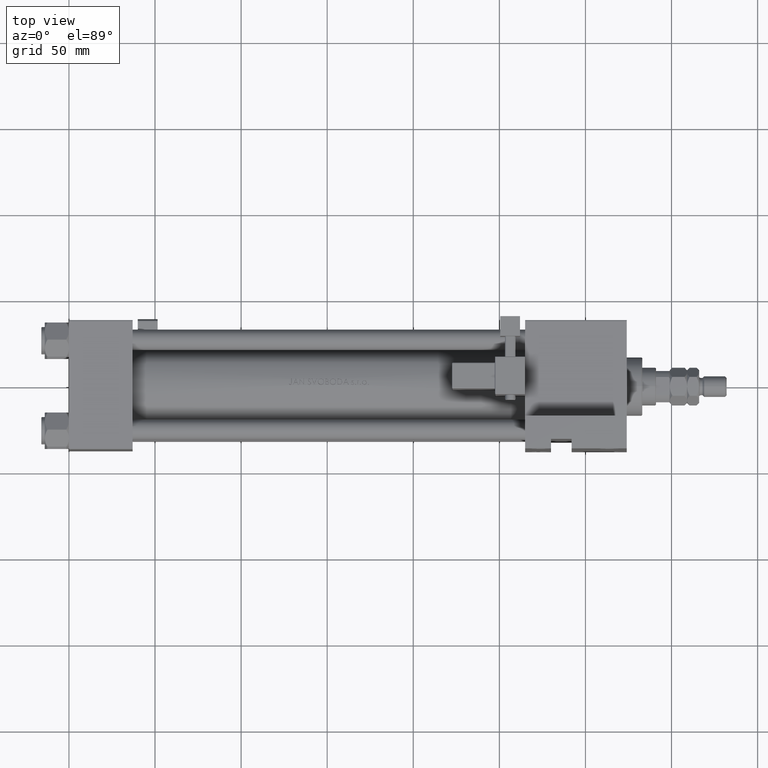
[diagram: clean part render]
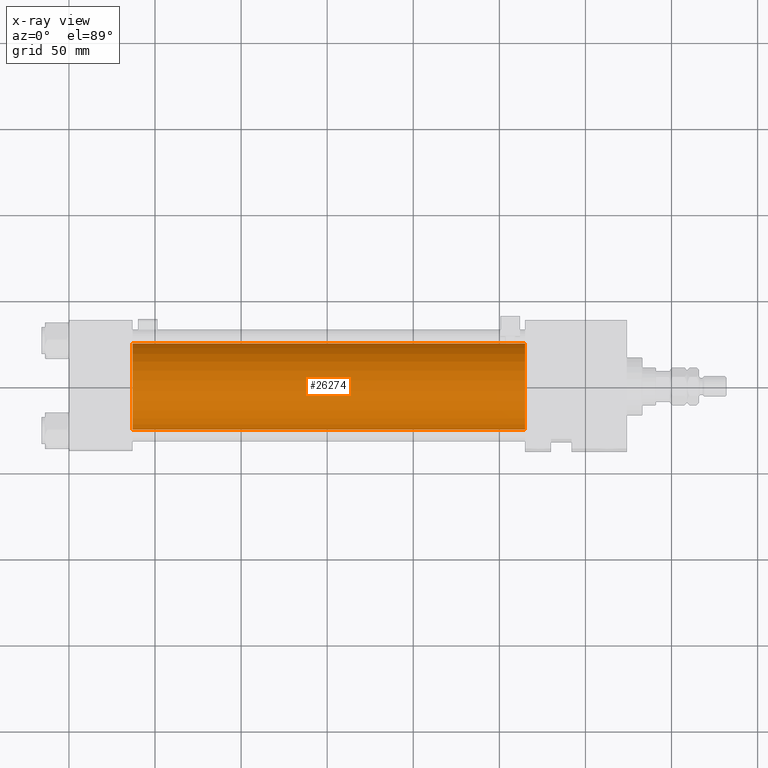
[diagram: x-ray — body ghosted, one internal face saturated and labeled with its STEP entity id]
A machine part, top view, then the same camera in x-ray: the body is ghosted and one INTERNAL B-rep face — a face not visible from any outside direction — is saturated and labeled: STEP entity #26274.
In plain terms, the highlighted cylindrical surface (partial cylindrical patch) has radius 25 mm, axis along (-1, -0, 0).
Its self-contained STEP definition (entity closure, byte-faithful):
#283 = LINE ( 'NONE', #13004, #49277 ) ;
#2140 = FACE_OUTER_BOUND ( 'NONE', #17516, .T. ) ;
#2385 = CARTESIAN_POINT ( 'NONE',  ( 265.0000000000000000, 6.123233995736772199E-17, 24.50000000000000000 ) ) ;
#3741 = EDGE_CURVE ( 'NONE', #51265, #22172, #283, .T. ) ;
#3802 = EDGE_CURVE ( 'NONE', #22172, #24192, #25214, .T. ) ;
#4516 = VECTOR ( 'NONE', #46269, 1000.000000000000000 ) ;
#7590 = AXIS2_PLACEMENT_3D ( 'NONE', #50175, #26029, #46537 ) ;
#9193 = CARTESIAN_POINT ( 'NONE',  ( 37.00000000000000000, 3.122849337825749828E-15, -25.50000000000000355 ) ) ;
#9853 = AXIS2_PLACEMENT_3D ( 'NONE', #21901, #49182, #36966 ) ;
#13004 = CARTESIAN_POINT ( 'NONE',  ( 265.0000000000000000, 6.123233995736772199E-17, 24.50000000000000000 ) ) ;
#15203 = ORIENTED_EDGE ( 'NONE', *, *, #3741, .F. ) ;
#16129 = CARTESIAN_POINT ( 'NONE',  ( 37.00000000000000000, 6.123233995736772199E-17, -0.5000000000000004441 ) ) ;
#17516 = EDGE_LOOP ( 'NONE', ( #19398, #24771, #49523, #15203 ) ) ;
#17988 = CYLINDRICAL_SURFACE ( 'NONE', #7590, 25.00000000000000000 ) ;
#19398 = ORIENTED_EDGE ( 'NONE', *, *, #45313, .T. ) ;
#20799 = DIRECTION ( 'NONE',  ( 1.000000000000000000, 0.000000000000000000, 0.000000000000000000 ) ) ;
#21901 = CARTESIAN_POINT ( 'NONE',  ( 265.0000000000000000, 6.123233995736772199E-17, -0.5000000000000004441 ) ) ;
#22172 = VERTEX_POINT ( 'NONE', #48922 ) ;
#24192 = VERTEX_POINT ( 'NONE', #9193 ) ;
#24771 = ORIENTED_EDGE ( 'NONE', *, *, #33424, .T. ) ;
#25214 = CIRCLE ( 'NONE', #28523, 25.00000000000000000 ) ;
#26029 = DIRECTION ( 'NONE',  ( -1.000000000000000000, -0.000000000000000000, -0.000000000000000000 ) ) ;
#26274 = ADVANCED_FACE ( 'NONE', ( #2140 ), #17988, .F. ) ;
#28094 = DIRECTION ( 'NONE',  ( -1.000000000000000000, -0.000000000000000000, -0.000000000000000000 ) ) ;
#28523 = AXIS2_PLACEMENT_3D ( 'NONE', #16129, #20799, #31972 ) ;
#29455 = VERTEX_POINT ( 'NONE', #47530 ) ;
#31972 = DIRECTION ( 'NONE',  ( 0.000000000000000000, 0.000000000000000000, -1.000000000000000000 ) ) ;
#33424 = EDGE_CURVE ( 'NONE', #29455, #24192, #50423, .T. ) ;
#34057 = CARTESIAN_POINT ( 'NONE',  ( 265.0000000000000000, 3.122849337825749828E-15, -25.50000000000000355 ) ) ;
#36966 = DIRECTION ( 'NONE',  ( 0.000000000000000000, 0.000000000000000000, -1.000000000000000000 ) ) ;
#45313 = EDGE_CURVE ( 'NONE', #51265, #29455, #50489, .T. ) ;
#46269 = DIRECTION ( 'NONE',  ( -1.000000000000000000, -0.000000000000000000, -0.000000000000000000 ) ) ;
#46537 = DIRECTION ( 'NONE',  ( 0.000000000000000000, 0.000000000000000000, 1.000000000000000000 ) ) ;
#47530 = CARTESIAN_POINT ( 'NONE',  ( 265.0000000000000000, 3.122849337825749828E-15, -25.50000000000000355 ) ) ;
#48922 = CARTESIAN_POINT ( 'NONE',  ( 37.00000000000000000, 6.123233995736772199E-17, 24.50000000000000000 ) ) ;
#49182 = DIRECTION ( 'NONE',  ( 1.000000000000000000, 0.000000000000000000, 0.000000000000000000 ) ) ;
#49277 = VECTOR ( 'NONE', #28094, 1000.000000000000000 ) ;
#49523 = ORIENTED_EDGE ( 'NONE', *, *, #3802, .F. ) ;
#50175 = CARTESIAN_POINT ( 'NONE',  ( 265.0000000000000000, 6.123233995736772199E-17, -0.5000000000000004441 ) ) ;
#50423 = LINE ( 'NONE', #34057, #4516 ) ;
#50489 = CIRCLE ( 'NONE', #9853, 25.00000000000000000 ) ;
#51265 = VERTEX_POINT ( 'NONE', #2385 ) ;